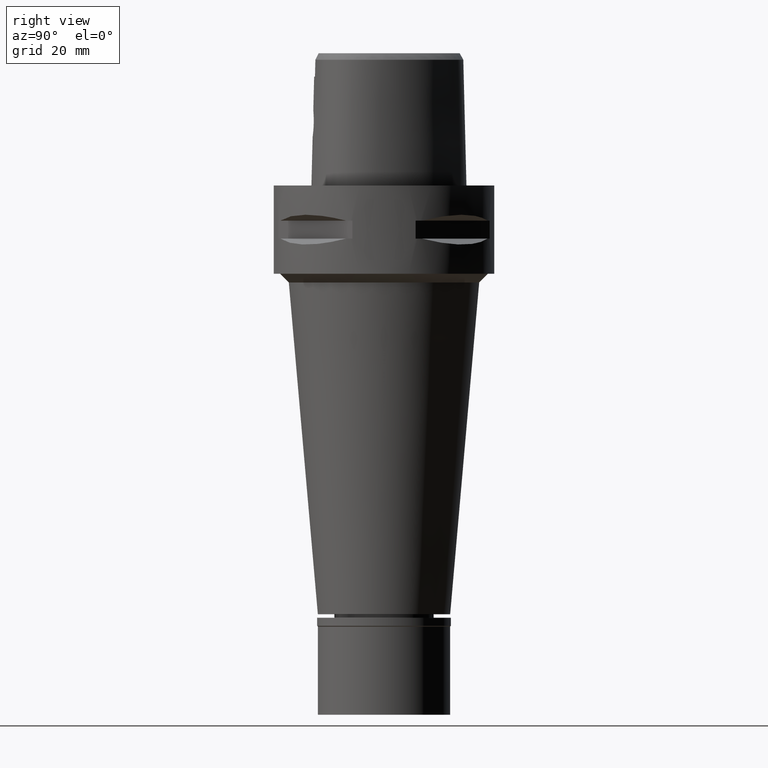
[diagram: clean part render]
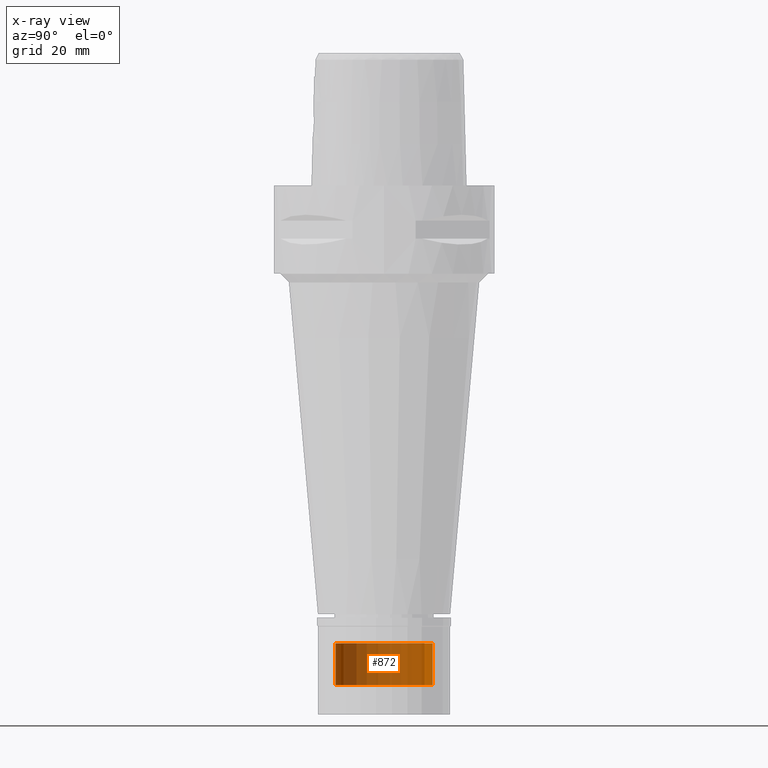
[diagram: x-ray — body ghosted, one internal face saturated and labeled with its STEP entity id]
A machine part, right view, then the same camera in x-ray: the body is ghosted and one INTERNAL B-rep face — a face not visible from any outside direction — is saturated and labeled: STEP entity #872.
In plain terms, the highlighted cylindrical surface (partial cylindrical patch) has radius 11 mm, axis along (0, 0, -1).
Its self-contained STEP definition (entity closure, byte-faithful):
#19 = CARTESIAN_POINT ( 'NONE',  ( 0.0000000000000000000, -11.00000000000000000, -103.7999999999999972 ) ) ;
#53 = VECTOR ( 'NONE', #3916, 1000.000000000000000 ) ;
#185 = CIRCLE ( 'NONE', #2729, 11.00000000000000000 ) ;
#525 = VECTOR ( 'NONE', #2321, 1000.000000000000000 ) ;
#554 = EDGE_CURVE ( 'NONE', #3767, #4476, #185, .T. ) ;
#594 = CARTESIAN_POINT ( 'NONE',  ( 0.0000000000000000000, 1.294023040318999806E-14, 5.665000000000000036 ) ) ;
#849 = CARTESIAN_POINT ( 'NONE',  ( 0.0000000000000000000, -11.00000000000000000, -103.7999999999999972 ) ) ;
#872 = ADVANCED_FACE ( 'NONE', ( #3244 ), #4409, .T. ) ;
#905 = ORIENTED_EDGE ( 'NONE', *, *, #3233, .T. ) ;
#969 = DIRECTION ( 'NONE',  ( 0.0000000000000000000, -1.000000000000000000, 0.0000000000000000000 ) ) ;
#1083 = AXIS2_PLACEMENT_3D ( 'NONE', #2713, #1630, #2077 ) ;
#1630 = DIRECTION ( 'NONE',  ( 0.0000000000000000000, 0.0000000000000000000, -1.000000000000000000 ) ) ;
#1728 = DIRECTION ( 'NONE',  ( 0.0000000000000000000, 0.0000000000000000000, -1.000000000000000000 ) ) ;
#1864 = ORIENTED_EDGE ( 'NONE', *, *, #554, .T. ) ;
#2015 = CARTESIAN_POINT ( 'NONE',  ( 0.0000000000000000000, 11.00000000000000000, -103.7999999999999972 ) ) ;
#2017 = AXIS2_PLACEMENT_3D ( 'NONE', #594, #1728, #969 ) ;
#2051 = CARTESIAN_POINT ( 'NONE',  ( 0.0000000000000000000, 1.294023040318999806E-14, -113.2999999999999972 ) ) ;
#2077 = DIRECTION ( 'NONE',  ( 0.0000000000000000000, -1.000000000000000000, 0.0000000000000000000 ) ) ;
#2241 = VERTEX_POINT ( 'NONE', #19 ) ;
#2313 = EDGE_CURVE ( 'NONE', #2241, #2623, #2416, .T. ) ;
#2321 = DIRECTION ( 'NONE',  ( 0.0000000000000000000, 0.0000000000000000000, -1.000000000000000000 ) ) ;
#2333 = CARTESIAN_POINT ( 'NONE',  ( 0.0000000000000000000, 11.00000000000000000, -103.7999999999999972 ) ) ;
#2399 = LINE ( 'NONE', #2333, #53 ) ;
#2416 = CIRCLE ( 'NONE', #1083, 11.00000000000000000 ) ;
#2508 = CARTESIAN_POINT ( 'NONE',  ( 0.0000000000000000000, -11.00000000000000000, -113.2999999999999972 ) ) ;
#2623 = VERTEX_POINT ( 'NONE', #2015 ) ;
#2713 = CARTESIAN_POINT ( 'NONE',  ( 0.0000000000000000000, 1.294023040318999806E-14, -103.7999999999999972 ) ) ;
#2729 = AXIS2_PLACEMENT_3D ( 'NONE', #2051, #3186, #2838 ) ;
#2838 = DIRECTION ( 'NONE',  ( 0.0000000000000000000, 1.000000000000000000, 0.0000000000000000000 ) ) ;
#2937 = EDGE_LOOP ( 'NONE', ( #1864, #4778, #4477, #905 ) ) ;
#3186 = DIRECTION ( 'NONE',  ( 0.0000000000000000000, 0.0000000000000000000, 1.000000000000000000 ) ) ;
#3233 = EDGE_CURVE ( 'NONE', #2623, #3767, #2399, .T. ) ;
#3244 = FACE_OUTER_BOUND ( 'NONE', #2937, .T. ) ;
#3353 = CARTESIAN_POINT ( 'NONE',  ( 0.0000000000000000000, 11.00000000000000000, -113.2999999999999972 ) ) ;
#3767 = VERTEX_POINT ( 'NONE', #3353 ) ;
#3916 = DIRECTION ( 'NONE',  ( 0.0000000000000000000, 0.0000000000000000000, -1.000000000000000000 ) ) ;
#4284 = LINE ( 'NONE', #849, #525 ) ;
#4351 = EDGE_CURVE ( 'NONE', #2241, #4476, #4284, .T. ) ;
#4409 = CYLINDRICAL_SURFACE ( 'NONE', #2017, 11.00000000000000000 ) ;
#4476 = VERTEX_POINT ( 'NONE', #2508 ) ;
#4477 = ORIENTED_EDGE ( 'NONE', *, *, #2313, .T. ) ;
#4778 = ORIENTED_EDGE ( 'NONE', *, *, #4351, .F. ) ;